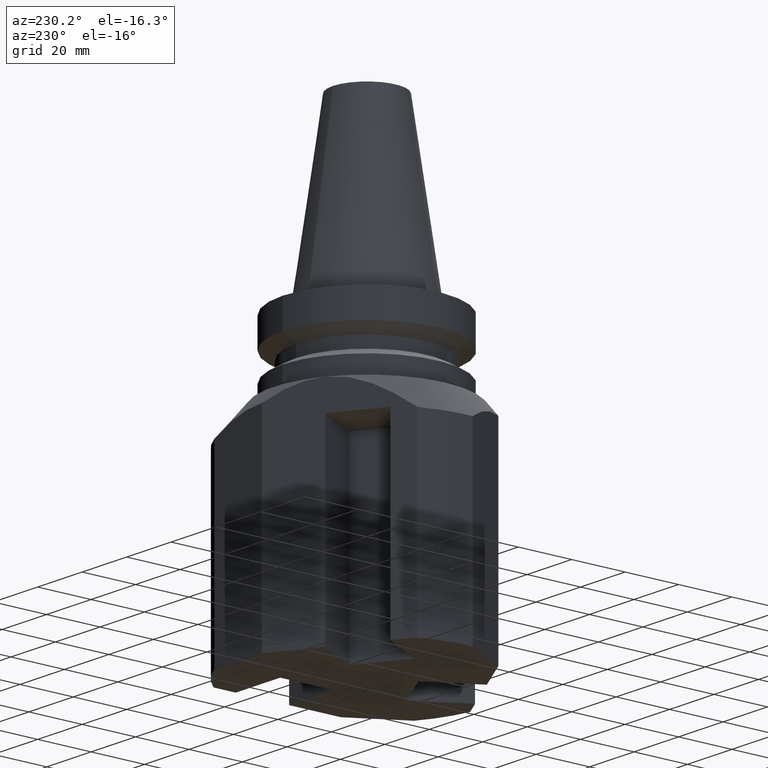
[diagram: clean part render]
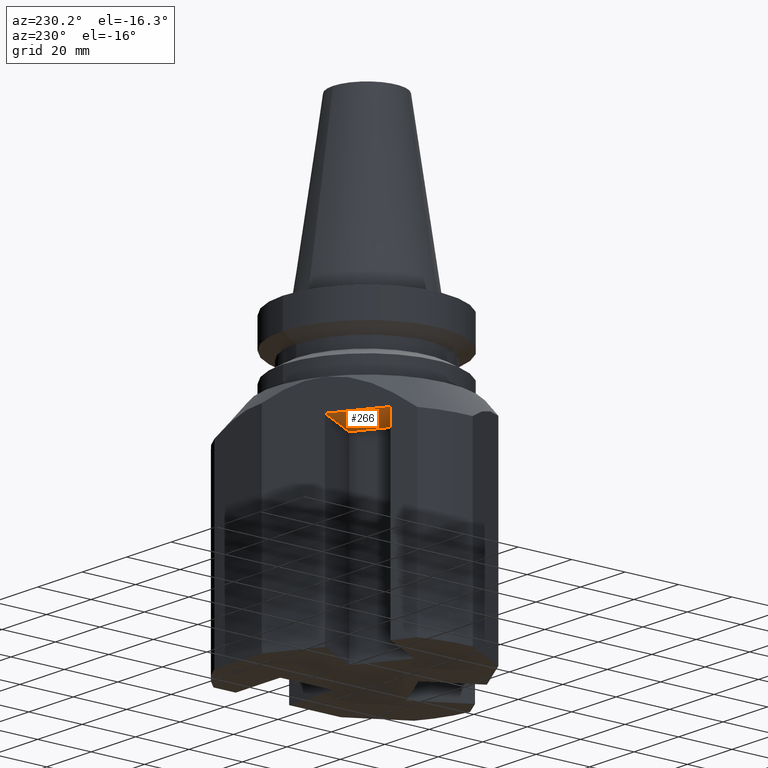
[diagram: same view with one face highlighted and labeled with its STEP entity id]
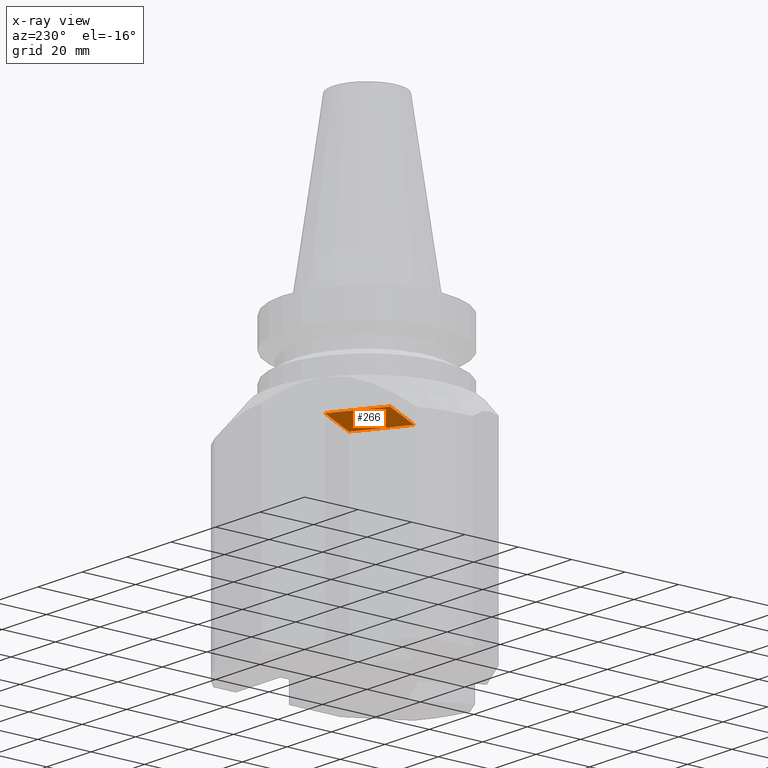
[diagram: x-ray of the same camera — body ghosted, the highlighted face saturated]
A machine part, auxiliary view. The second image highlights one B-rep face of the part: STEP entity #266.
The next image is the same camera in x-ray: the body ghosted, the highlighted face saturated — about 0% of this face is hidden behind the body in this view.
In plain terms, the highlighted planar face has unit normal (-0, -0, -1).
Its self-contained STEP definition (entity closure, byte-faithful):
#233=EDGE_CURVE('Unnamed[1]',#573,#439,#574,.T.);
#266=ADVANCED_FACE('Unnamed[1]',(#620),#621,.T.);
#332=EDGE_CURVE('Unnamed[1]',#436,#699,#700,.T.);
#363=EDGE_CURVE('Unnamed[1]',#573,#436,#740,.T.);
#409=EDGE_CURVE('Unnamed[1]',#699,#439,#796,.T.);
#436=VERTEX_POINT('',#817);
#439=VERTEX_POINT('',#822);
#573=VERTEX_POINT('',#1028);
#574=LINE('',#1029,#1030);
#620=FACE_OUTER_BOUND('',#1104,.T.);
#621=PLANE('',#1105);
#699=VERTEX_POINT('',#1252);
#700=LINE('',#1253,#1254);
#740=LINE('',#1328,#1329);
#796=LINE('',#1423,#1424);
#817=CARTESIAN_POINT('',(-7.50000000000002,12.9903810567661,-39.9999999999998));
#822=CARTESIAN_POINT('',(-34.8205080756889,20.3108891324547,-39.9999999999998));
#1028=CARTESIAN_POINT('',(-17.4999999999994,30.310889132454,-39.9999999999998));
#1029=CARTESIAN_POINT('',(-23.7583433001901,26.6976329434083,-39.9999999999998));
#1030=VECTOR('',#1566,1.0);
#1104=EDGE_LOOP('',(#1610,#1611,#1612,#1613));
#1105=AXIS2_PLACEMENT_3D('',#1614,#1615,#1616);
#1252=CARTESIAN_POINT('',(-24.8205080756888,2.99038105676607,-39.9999999999998));
#1253=CARTESIAN_POINT('',(-24.8205080756888,2.99038105676607,-39.9999999999998));
#1254=VECTOR('',#1712,1.0);
#1328=CARTESIAN_POINT('',(-7.50000000000002,12.9903810567661,-39.9999999999998));
#1329=VECTOR('',#1763,1.0);
#1423=CARTESIAN_POINT('',(-24.8205080756888,2.99038105676607,-39.9999999999998));
#1424=VECTOR('',#1836,1.0);
#1566=DIRECTION('',(-0.866025403784461,-0.499999999999961,5.38491197383583E-016));
#1610=ORIENTED_EDGE('',*,*,#233,.F.);
#1611=ORIENTED_EDGE('',*,*,#363,.T.);
#1612=ORIENTED_EDGE('',*,*,#332,.T.);
#1613=ORIENTED_EDGE('',*,*,#409,.T.);
#1614=CARTESIAN_POINT('',(-26.6602540378442,26.1769145362388,-39.9999999999998));
#1615=DIRECTION('',(-5.51091059616309E-016,-1.22464679914735E-016,-1.0));
#1616=DIRECTION('',(3.67394039744206E-016,1.0,-1.22464679914735E-016));
#1712=DIRECTION('',(-0.866025403784436,-0.500000000000004,5.38491197383575E-016));
#1763=DIRECTION('',(0.499999999999997,-0.86602540378444,-1.69488005935662E-016));
#1836=DIRECTION('',(-0.500000000000008,0.866025403784434,1.69488005935669E-016));